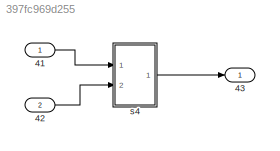
MODEL slx_397fc969d255
KIND model
CONFIG AbsTol = auto
CONFIG EnableMultiTasking = off
CONFIG FixedStep = auto
CONFIG MaxStep = auto
CONFIG MinStep = auto
CONFIG RelTol = 1e-3
CONFIG SampleTimeConstraint = Unconstrained
CONFIG Solver = VariableStepAuto
CONFIG SolverName = VariableStepAuto
CONFIG StartTime = 0.0
CONFIG StopTime = 10.0
BLOCK [Inport] 41
  IconDisplay = Port number
BLOCK [Inport] 42
  IconDisplay = Port number
  Port = 2
BLOCK [Outport] 43
  IconDisplay = Port number
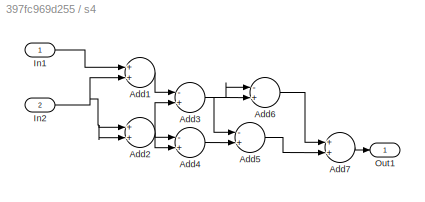
BLOCK [SubSystem] s4
  Ports = [2, 1]
  RequestExecContextInheritance = off
  Variant = off
BLOCK [Sum] s4/Add1
  InputSameDT = off
  OutDataTypeStr = Inherit: Inherit via internal rule
  Ports = [2, 1]
  SaturateOnIntegerOverflow = off
BLOCK [Sum] s4/Add2
  InputSameDT = off
  OutDataTypeStr = Inherit: Inherit via internal rule
  Ports = [2, 1]
  SaturateOnIntegerOverflow = off
BLOCK [Sum] s4/Add3
  InputSameDT = off
  Inputs = -+
  OutDataTypeStr = Inherit: Inherit via internal rule
  Ports = [2, 1]
  SaturateOnIntegerOverflow = off
BLOCK [Sum] s4/Add4
  InputSameDT = off
  Inputs = -+
  OutDataTypeStr = Inherit: Inherit via internal rule
  Ports = [2, 1]
  SaturateOnIntegerOverflow = off
BLOCK [Sum] s4/Add5
  InputSameDT = off
  Inputs = -+
  OutDataTypeStr = Inherit: Inherit via internal rule
  Ports = [2, 1]
  SaturateOnIntegerOverflow = off
BLOCK [Sum] s4/Add6
  InputSameDT = off
  Inputs = -+
  OutDataTypeStr = Inherit: Inherit via internal rule
  Ports = [2, 1]
  SaturateOnIntegerOverflow = off
BLOCK [Sum] s4/Add7
  InputSameDT = off
  OutDataTypeStr = Inherit: Inherit via internal rule
  Ports = [2, 1]
  SaturateOnIntegerOverflow = off
BLOCK [Inport] s4/In1
  IconDisplay = Port number
BLOCK [Inport] s4/In2
  IconDisplay = Port number
  Port = 2
BLOCK [Outport] s4/Out1
  IconDisplay = Port number
LINE 41:1 -> s4:1
LINE 42:1 -> s4:2
LINE s4/Add1:1 -> s4/Add3:1
NET s4/Add2:1 -> s4/Add3:2, s4/Add4:1, s4/Add4:2
NET s4/Add3:1 -> s4/Add5:1, s4/Add6:1, s4/Add6:2
LINE s4/Add4:1 -> s4/Add5:2
LINE s4/Add5:1 -> s4/Add7:2
LINE s4/Add6:1 -> s4/Add7:1
LINE s4/Add7:1 -> s4/Out1:1
LINE s4/In1:1 -> s4/Add1:1
NET s4/In2:1 -> s4/Add1:2, s4/Add2:1, s4/Add2:2
LINE s4:1 -> 43:1
note: NET lines group one-source signal fan-out (src -> all destinations, sorted); 1:1 wires keep LINE
